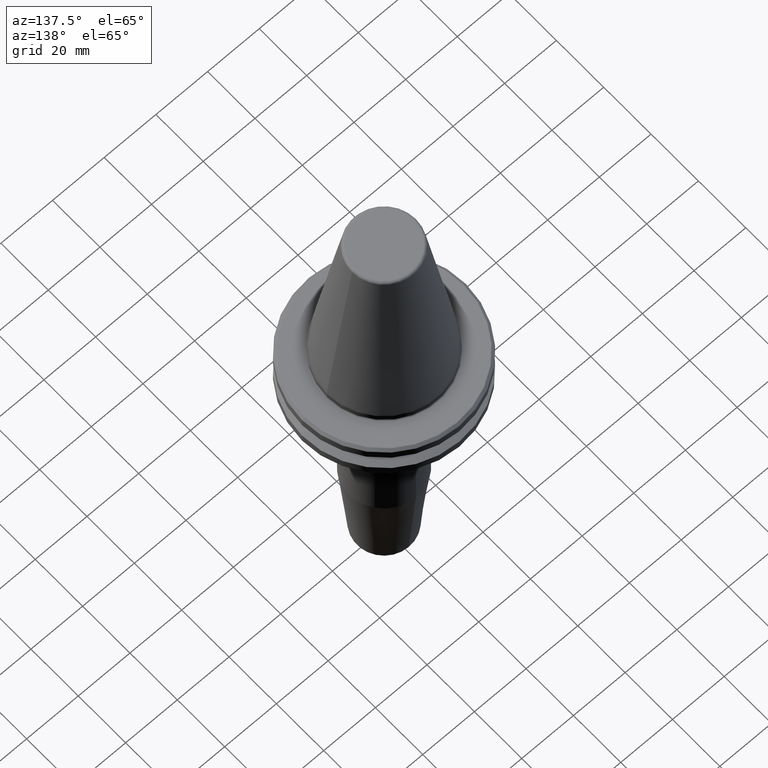
[diagram: clean part render]
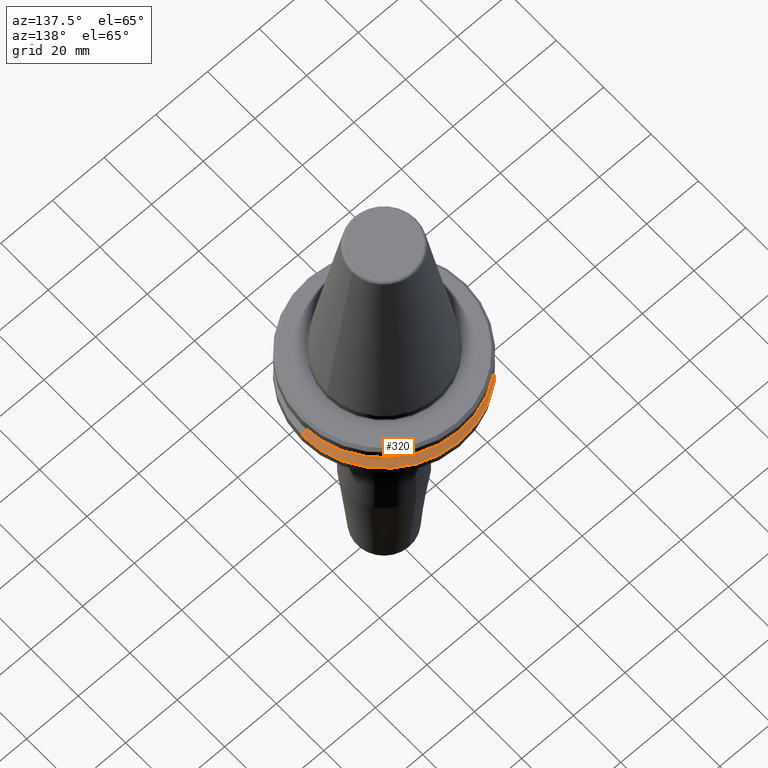
[diagram: same view with one face highlighted and labeled with its STEP entity id]
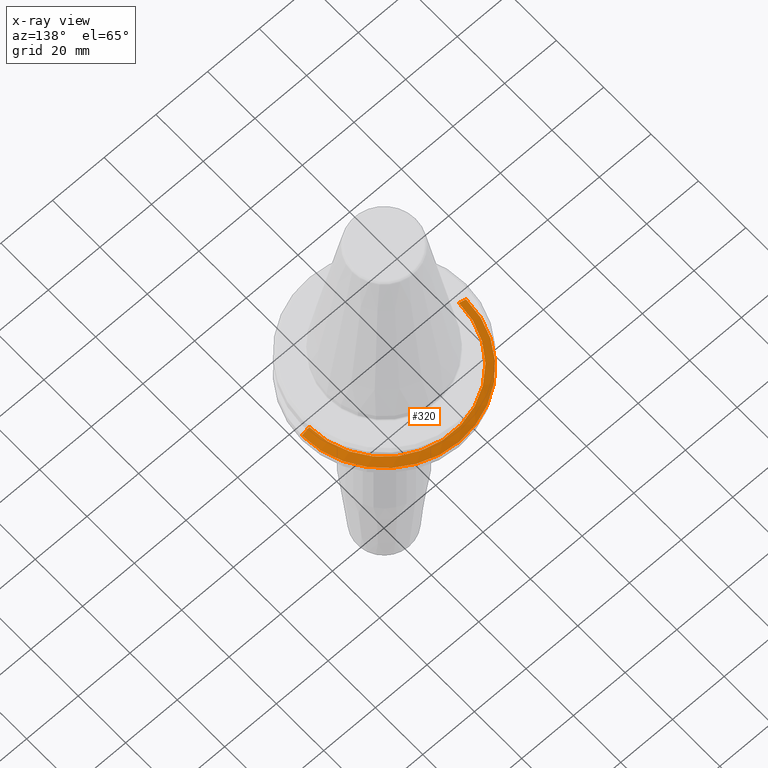
[diagram: x-ray of the same camera — body ghosted, the highlighted face saturated]
A machine part, auxiliary view. The second image highlights one B-rep face of the part: STEP entity #320.
The next image is the same camera in x-ray: the body ghosted, the highlighted face saturated — about 0% of this face is hidden behind the body in this view.
In plain terms, the highlighted conical surface has half-angle 60 deg.
Its self-contained STEP definition (entity closure, byte-faithful):
#36 = VECTOR ( 'NONE', #542, 999.9999999999998900 ) ;
#82 = ORIENTED_EDGE ( 'NONE', *, *, #933, .F. ) ;
#124 = ORIENTED_EDGE ( 'NONE', *, *, #347, .T. ) ;
#130 = CONICAL_SURFACE ( 'NONE', #272, 28.94089653438085100, 1.047197551196604300 ) ;
#132 = VERTEX_POINT ( 'NONE', #1051 ) ;
#220 = CARTESIAN_POINT ( 'NONE',  ( 0.0000000000000000000, 0.0000000000000000000, -13.00000000000001100 ) ) ;
#272 = AXIS2_PLACEMENT_3D ( 'NONE', #220, #707, #893 ) ;
#293 = EDGE_LOOP ( 'NONE', ( #82, #124, #919, #1214 ) ) ;
#304 = CARTESIAN_POINT ( 'NONE',  ( -28.94089653438085100, 0.0000000000000000000, -13.00000000000001100 ) ) ;
#320 = ADVANCED_FACE ( 'NONE', ( #391 ), #130, .T. ) ;
#324 = CARTESIAN_POINT ( 'NONE',  ( 28.94089653438085100, 3.544237630528423800E-015, -13.00000000000001100 ) ) ;
#342 = CARTESIAN_POINT ( 'NONE',  ( 0.0000000000000000000, 0.0000000000000000000, -14.62183664205671200 ) ) ;
#347 = EDGE_CURVE ( 'NONE', #963, #132, #619, .T. ) ;
#367 = VECTOR ( 'NONE', #776, 999.9999999999998900 ) ;
#391 = FACE_OUTER_BOUND ( 'NONE', #293, .T. ) ;
#420 = EDGE_CURVE ( 'NONE', #132, #473, #1035, .T. ) ;
#465 = DIRECTION ( 'NONE',  ( -0.0000000000000000000, -0.0000000000000000000, 1.000000000000000000 ) ) ;
#473 = VERTEX_POINT ( 'NONE', #932 ) ;
#542 = DIRECTION ( 'NONE',  ( -0.8660254037844420400, 0.0000000000000000000, -0.4999999999999943900 ) ) ;
#544 = VERTEX_POINT ( 'NONE', #304 ) ;
#619 = LINE ( 'NONE', #324, #367 ) ;
#629 = AXIS2_PLACEMENT_3D ( 'NONE', #342, #1011, #915 ) ;
#649 = CARTESIAN_POINT ( 'NONE',  ( 28.94089653438085100, 3.716245608910634800E-015, -13.00000000000001100 ) ) ;
#707 = DIRECTION ( 'NONE',  ( 0.0000000000000000000, 0.0000000000000000000, -1.000000000000000000 ) ) ;
#734 = CARTESIAN_POINT ( 'NONE',  ( -28.94089653438085100, 0.0000000000000000000, -13.00000000000001100 ) ) ;
#773 = CIRCLE ( 'NONE', #1113, 28.94089653438085100 ) ;
#776 = DIRECTION ( 'NONE',  ( 0.8660254037844420400, 1.060575238724911000E-016, -0.4999999999999943900 ) ) ;
#811 = LINE ( 'NONE', #734, #36 ) ;
#870 = EDGE_CURVE ( 'NONE', #544, #473, #811, .T. ) ;
#893 = DIRECTION ( 'NONE',  ( -1.000000000000000000, 0.0000000000000000000, 0.0000000000000000000 ) ) ;
#915 = DIRECTION ( 'NONE',  ( 1.000000000000000000, 0.0000000000000000000, 0.0000000000000000000 ) ) ;
#919 = ORIENTED_EDGE ( 'NONE', *, *, #420, .T. ) ;
#932 = CARTESIAN_POINT ( 'NONE',  ( -31.75000000000000000, 3.888253587292846500E-015, -14.62183664205671200 ) ) ;
#933 = EDGE_CURVE ( 'NONE', #963, #544, #773, .T. ) ;
#963 = VERTEX_POINT ( 'NONE', #649 ) ;
#1011 = DIRECTION ( 'NONE',  ( -0.0000000000000000000, -0.0000000000000000000, 1.000000000000000000 ) ) ;
#1029 = CARTESIAN_POINT ( 'NONE',  ( 0.0000000000000000000, 0.0000000000000000000, -13.00000000000001100 ) ) ;
#1035 = CIRCLE ( 'NONE', #629, 31.75000000000000000 ) ;
#1051 = CARTESIAN_POINT ( 'NONE',  ( 31.75000000000000000, 0.0000000000000000000, -14.62183664205671200 ) ) ;
#1113 = AXIS2_PLACEMENT_3D ( 'NONE', #1029, #465, #1127 ) ;
#1127 = DIRECTION ( 'NONE',  ( 1.000000000000000000, 0.0000000000000000000, 0.0000000000000000000 ) ) ;
#1214 = ORIENTED_EDGE ( 'NONE', *, *, #870, .F. ) ;